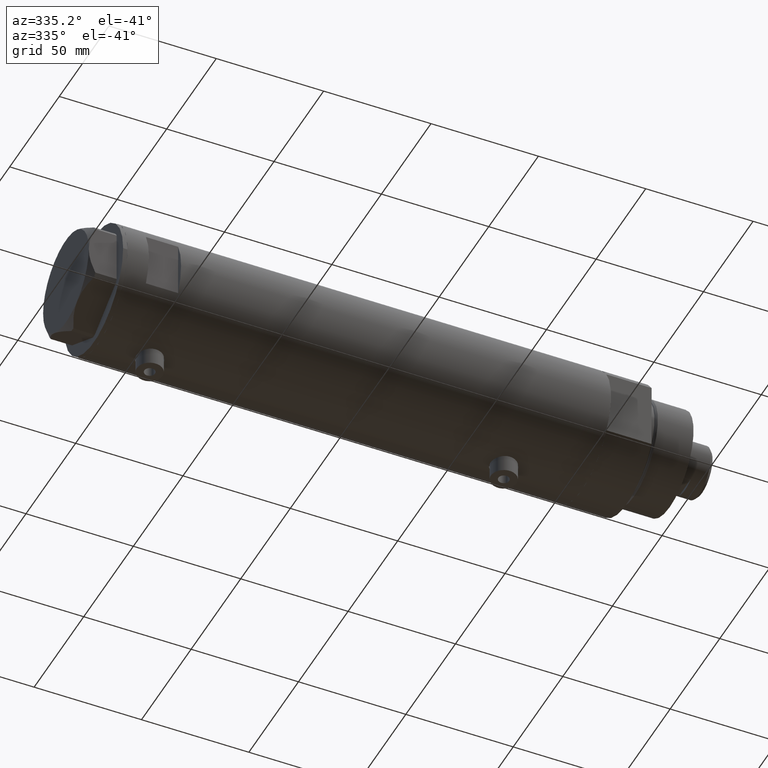
[diagram: clean part render]
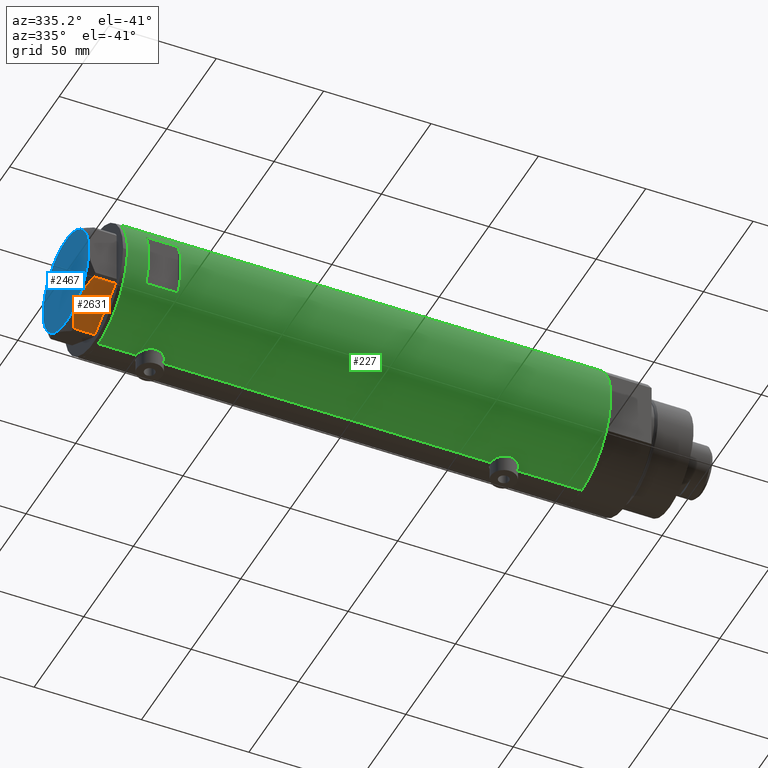
[diagram: same view with three faces highlighted in distinct colors, each labeled with its STEP entity id]
A machine part, auxiliary view with three faces highlighted in distinct colors.
Their STEP definitions:

[orange] entity #2631 — the highlighted planar face has unit normal (0, 0.5, 0.866).
#35 = B_SPLINE_CURVE_WITH_KNOTS ( 'NONE', 3,
 ( #3242, #4729, #2881, #2162, #3628, #94, #1948, #850, #4557, #1199 ),
 .UNSPECIFIED., .F., .F.,
 ( 4, 2, 2, 2, 4 ),
 ( 0.01376519981810312397, 0.01998941321701587850, 0.02154546656674406757, 0.02310151991647225664, 0.02621362661592864171 ),
 .UNSPECIFIED. ) ;
#57 = EDGE_CURVE ( 'NONE', #3367, #337, #2807, .T. ) ;
#94 = CARTESIAN_POINT ( 'NONE',  ( -18.64279229058393739, 15.79469123530780372, 11.57055225522972286 ) ) ;
#149 = PLANE ( 'NONE',  #1651 ) ;
#152 = VECTOR ( 'NONE', #3558, 1000.000000000000000 ) ;
#224 = VECTOR ( 'NONE', #4338, 1000.000000000000000 ) ;
#334 = ORIENTED_EDGE ( 'NONE', *, *, #4470, .T. ) ;
#337 = VERTEX_POINT ( 'NONE', #4058 ) ;
#411 = CARTESIAN_POINT ( 'NONE',  ( -4.320186229909891651, 24.06385169993495055, 11.62937486882611005 ) ) ;
#850 = CARTESIAN_POINT ( 'NONE',  ( -20.35958612119325650, 14.80349985506242838, 10.84420102443839085 ) ) ;
#892 = CARTESIAN_POINT ( 'NONE',  ( 0.000000000000000000, 26.55811238272274366, 13.00000000000000000 ) ) ;
#916 = DIRECTION ( 'NONE',  ( 0.5000000000000008882, -0.8660254037844381525, 0.000000000000000000 ) ) ;
#980 = CARTESIAN_POINT ( 'NONE',  ( -22.03005154776142049, 13.83905619136132614, 13.00000000000000000 ) ) ;
#1165 = DIRECTION ( 'NONE',  ( -0.8660254037844380415, -0.5000000000000008882, 0.000000000000000000 ) ) ;
#1199 = CARTESIAN_POINT ( 'NONE',  ( -22.03005154776142760, 13.83905619136132259, 9.983800287807632401 ) ) ;
#1208 = CARTESIAN_POINT ( 'NONE',  ( -9.656518383329851574, 20.98291889467267879, 12.90784227772844162 ) ) ;
#1312 = ORIENTED_EDGE ( 'NONE', *, *, #57, .T. ) ;
#1378 = CARTESIAN_POINT ( 'NONE',  ( -0.9699484522385893870, 25.99811238272273073, 0.000000000000000000 ) ) ;
#1421 = B_SPLINE_CURVE_WITH_KNOTS ( 'NONE', 3,
 ( #2673, #3050, #411, #2654, #4160, #1505, #1208, #1526, #4467, #2987 ),
 .UNSPECIFIED., .F., .F.,
 ( 4, 2, 2, 2, 4 ),
 ( 0.001228959670438532553, 0.007497079744270828371, 0.01063113978118697921, 0.01219816979964505159, 0.01376519981810312397 ),
 .UNSPECIFIED. ) ;
#1470 = EDGE_LOOP ( 'NONE', ( #3000, #1312, #3132, #2885, #334 ) ) ;
#1505 = CARTESIAN_POINT ( 'NONE',  ( -9.197898616902921987, 21.24770314027493612, 12.85271263895580596 ) ) ;
#1526 = CARTESIAN_POINT ( 'NONE',  ( -10.58093321976963175, 20.44920774001128194, 12.98168640760950510 ) ) ;
#1632 = EDGE_CURVE ( 'NONE', #2811, #3367, #4726, .T. ) ;
#1651 = AXIS2_PLACEMENT_3D ( 'NONE', #892, #916, #2339 ) ;
#1923 = VERTEX_POINT ( 'NONE', #2945 ) ;
#1948 = CARTESIAN_POINT ( 'NONE',  ( -19.07486218896993790, 15.54523556316591915, 11.39727285399141898 ) ) ;
#2087 = LINE ( 'NONE', #2453, #152 ) ;
#2162 = CARTESIAN_POINT ( 'NONE',  ( -17.32831362639716843, 16.55360584592005679, 12.04068176582934235 ) ) ;
#2339 = DIRECTION ( 'NONE',  ( 0.8660254037844381525, 0.5000000000000008882, 0.000000000000000000 ) ) ;
#2453 = CARTESIAN_POINT ( 'NONE',  ( -0.9699484522385897201, 25.99811238272273073, 13.00000000000000000 ) ) ;
#2631 = ADVANCED_FACE ( 'NONE', ( #3187 ), #149, .F. ) ;
#2654 = CARTESIAN_POINT ( 'NONE',  ( -6.946777556903628970, 22.54738849024396075, 12.42689993760377831 ) ) ;
#2673 = CARTESIAN_POINT ( 'NONE',  ( -0.9699484522384476115, 25.99811238272281599, 9.983800287807556018 ) ) ;
#2807 = LINE ( 'NONE', #980, #224 ) ;
#2811 = VERTEX_POINT ( 'NONE', #1378 ) ;
#2881 = CARTESIAN_POINT ( 'NONE',  ( -15.11535457301031649, 17.83125835109857249, 12.70765172847700519 ) ) ;
#2885 = ORIENTED_EDGE ( 'NONE', *, *, #4092, .F. ) ;
#2945 = CARTESIAN_POINT ( 'NONE',  ( -11.50000000000004441, 19.91858428704211548, 13.00000000000000000 ) ) ;
#2987 = CARTESIAN_POINT ( 'NONE',  ( -11.50000000000004441, 19.91858428704211548, 13.00000000000000000 ) ) ;
#2996 = CARTESIAN_POINT ( 'NONE',  ( -22.03005154776141339, 13.83905619136132792, 0.000000000000000000 ) ) ;
#3000 = ORIENTED_EDGE ( 'NONE', *, *, #1632, .T. ) ;
#3050 = CARTESIAN_POINT ( 'NONE',  ( -2.626494320835643048, 25.04170517956326236, 10.87778242614345814 ) ) ;
#3132 = ORIENTED_EDGE ( 'NONE', *, *, #3291, .F. ) ;
#3187 = FACE_OUTER_BOUND ( 'NONE', #1470, .T. ) ;
#3242 = CARTESIAN_POINT ( 'NONE',  ( -11.50000000000004441, 19.91858428704211548, 13.00000000000000000 ) ) ;
#3291 = EDGE_CURVE ( 'NONE', #1923, #337, #35, .T. ) ;
#3367 = VERTEX_POINT ( 'NONE', #2996 ) ;
#3381 = CARTESIAN_POINT ( 'NONE',  ( -0.9699484522384476115, 25.99811238272281599, 9.983800287807556018 ) ) ;
#3428 = VERTEX_POINT ( 'NONE', #3381 ) ;
#3558 = DIRECTION ( 'NONE',  ( 0.000000000000000000, 0.000000000000000000, -1.000000000000000000 ) ) ;
#3628 = CARTESIAN_POINT ( 'NONE',  ( -17.77001848220189828, 16.29858742851882525, 11.89212886775844424 ) ) ;
#4053 = CARTESIAN_POINT ( 'NONE',  ( 0.000000000000000000, 26.55811238272274366, 0.000000000000000000 ) ) ;
#4058 = CARTESIAN_POINT ( 'NONE',  ( -22.03005154776142760, 13.83905619136132259, 9.983800287807632401 ) ) ;
#4092 = EDGE_CURVE ( 'NONE', #3428, #1923, #1421, .T. ) ;
#4119 = VECTOR ( 'NONE', #1165, 1000.000000000000227 ) ;
#4160 = CARTESIAN_POINT ( 'NONE',  ( -7.836767740116584058, 22.03355241838984924, 12.63731396715694899 ) ) ;
#4338 = DIRECTION ( 'NONE',  ( 0.000000000000000000, 0.000000000000000000, 1.000000000000000000 ) ) ;
#4467 = CARTESIAN_POINT ( 'NONE',  ( -11.04134848610939557, 20.18338686205100885, 13.00000000000010125 ) ) ;
#4470 = EDGE_CURVE ( 'NONE', #3428, #2811, #2087, .T. ) ;
#4557 = CARTESIAN_POINT ( 'NONE',  ( -21.20080365460317751, 14.31782268570117367, 10.43131750950939818 ) ) ;
#4726 = LINE ( 'NONE', #4053, #4119 ) ;
#4729 = CARTESIAN_POINT ( 'NONE',  ( -13.32175508098984018, 18.86679350063497296, 13.00000000000009237 ) ) ;

[blue] entity #2467 — the highlighted planar face has unit normal (-1, -0, 0).
#27 = CIRCLE ( 'NONE', #394, 23.00000000000004619 ) ;
#206 = DIRECTION ( 'NONE',  ( 0.000000000000000000, 0.000000000000000000, 1.000000000000000000 ) ) ;
#229 = AXIS2_PLACEMENT_3D ( 'NONE', #561, #1296, #4200 ) ;
#358 = CARTESIAN_POINT ( 'NONE',  ( 0.000000000000000000, 0.000000000000000000, 13.00000000000000000 ) ) ;
#394 = AXIS2_PLACEMENT_3D ( 'NONE', #1550, #2658, #4212 ) ;
#454 = EDGE_CURVE ( 'NONE', #3607, #3280, #4728, .T. ) ;
#494 = EDGE_CURVE ( 'NONE', #811, #3607, #4343, .T. ) ;
#496 = PLANE ( 'NONE',  #1574 ) ;
#561 = CARTESIAN_POINT ( 'NONE',  ( 0.000000000000000000, 0.000000000000000000, 13.00000000000000000 ) ) ;
#580 = DIRECTION ( 'NONE',  ( 0.000000000000000000, 0.000000000000000000, 1.000000000000000000 ) ) ;
#811 = VERTEX_POINT ( 'NONE', #4428 ) ;
#822 = EDGE_CURVE ( 'NONE', #1512, #1923, #4032, .T. ) ;
#871 = EDGE_CURVE ( 'NONE', #2904, #811, #2704, .T. ) ;
#1060 = ORIENTED_EDGE ( 'NONE', *, *, #454, .T. ) ;
#1270 = DIRECTION ( 'NONE',  ( 1.000000000000000000, 0.000000000000000000, 0.000000000000000000 ) ) ;
#1296 = DIRECTION ( 'NONE',  ( 0.000000000000000000, 0.000000000000000000, 1.000000000000000000 ) ) ;
#1447 = CARTESIAN_POINT ( 'NONE',  ( 22.99999999999995026, 2.373657066004705010E-13, 13.00000000000000000 ) ) ;
#1512 = VERTEX_POINT ( 'NONE', #2583 ) ;
#1521 = FACE_OUTER_BOUND ( 'NONE', #3836, .T. ) ;
#1542 = DIRECTION ( 'NONE',  ( 0.000000000000000000, 0.000000000000000000, 1.000000000000000000 ) ) ;
#1543 = CARTESIAN_POINT ( 'NONE',  ( 0.000000000000000000, 0.000000000000000000, 13.00000000000000000 ) ) ;
#1550 = CARTESIAN_POINT ( 'NONE',  ( 0.000000000000000000, 0.000000000000000000, 13.00000000000000000 ) ) ;
#1568 = CARTESIAN_POINT ( 'NONE',  ( -23.00000000000004619, -8.112498833180673323E-14, 13.00000000000000000 ) ) ;
#1574 = AXIS2_PLACEMENT_3D ( 'NONE', #1543, #3759, #4137 ) ;
#1704 = CARTESIAN_POINT ( 'NONE',  ( 0.000000000000000000, 0.000000000000000000, 13.00000000000000000 ) ) ;
#1864 = CIRCLE ( 'NONE', #2183, 23.00000000000004619 ) ;
#1923 = VERTEX_POINT ( 'NONE', #2945 ) ;
#2183 = AXIS2_PLACEMENT_3D ( 'NONE', #2373, #580, #1270 ) ;
#2289 = EDGE_CURVE ( 'NONE', #1923, #2904, #27, .T. ) ;
#2373 = CARTESIAN_POINT ( 'NONE',  ( 0.000000000000000000, 0.000000000000000000, 13.00000000000000000 ) ) ;
#2467 = ADVANCED_FACE ( 'NONE', ( #1521 ), #496, .T. ) ;
#2583 = CARTESIAN_POINT ( 'NONE',  ( 11.49999999999990408, 19.91858428704219364, 13.00000000000000000 ) ) ;
#2635 = AXIS2_PLACEMENT_3D ( 'NONE', #3085, #4300, #3527 ) ;
#2658 = DIRECTION ( 'NONE',  ( 0.000000000000000000, 0.000000000000000000, 1.000000000000000000 ) ) ;
#2704 = CIRCLE ( 'NONE', #229, 23.00000000000004619 ) ;
#2904 = VERTEX_POINT ( 'NONE', #1568 ) ;
#2945 = CARTESIAN_POINT ( 'NONE',  ( -11.50000000000004441, 19.91858428704211548, 13.00000000000000000 ) ) ;
#3085 = CARTESIAN_POINT ( 'NONE',  ( 0.000000000000000000, 0.000000000000000000, 13.00000000000000000 ) ) ;
#3252 = AXIS2_PLACEMENT_3D ( 'NONE', #1704, #206, #4655 ) ;
#3280 = VERTEX_POINT ( 'NONE', #1447 ) ;
#3353 = DIRECTION ( 'NONE',  ( 1.000000000000000000, 0.000000000000000000, 0.000000000000000000 ) ) ;
#3527 = DIRECTION ( 'NONE',  ( 1.000000000000000000, 0.000000000000000000, 0.000000000000000000 ) ) ;
#3592 = ORIENTED_EDGE ( 'NONE', *, *, #494, .T. ) ;
#3607 = VERTEX_POINT ( 'NONE', #4446 ) ;
#3639 = AXIS2_PLACEMENT_3D ( 'NONE', #358, #1542, #3353 ) ;
#3659 = ORIENTED_EDGE ( 'NONE', *, *, #822, .T. ) ;
#3759 = DIRECTION ( 'NONE',  ( 0.000000000000000000, 0.000000000000000000, 1.000000000000000000 ) ) ;
#3836 = EDGE_LOOP ( 'NONE', ( #1060, #4782, #3659, #4093, #4100, #3592 ) ) ;
#4032 = CIRCLE ( 'NONE', #3639, 23.00000000000004619 ) ;
#4093 = ORIENTED_EDGE ( 'NONE', *, *, #2289, .T. ) ;
#4100 = ORIENTED_EDGE ( 'NONE', *, *, #871, .T. ) ;
#4137 = DIRECTION ( 'NONE',  ( 1.000000000000000000, 0.000000000000000000, -0.000000000000000000 ) ) ;
#4200 = DIRECTION ( 'NONE',  ( 1.000000000000000000, 0.000000000000000000, 0.000000000000000000 ) ) ;
#4212 = DIRECTION ( 'NONE',  ( 1.000000000000000000, 0.000000000000000000, 0.000000000000000000 ) ) ;
#4300 = DIRECTION ( 'NONE',  ( 0.000000000000000000, 0.000000000000000000, 1.000000000000000000 ) ) ;
#4343 = CIRCLE ( 'NONE', #3252, 23.00000000000004619 ) ;
#4428 = CARTESIAN_POINT ( 'NONE',  ( -11.49999999999990585, -19.91858428704219364, 13.00000000000000000 ) ) ;
#4446 = CARTESIAN_POINT ( 'NONE',  ( 11.50000000000018296, -19.91858428704203732, 13.00000000000000000 ) ) ;
#4655 = DIRECTION ( 'NONE',  ( 1.000000000000000000, 0.000000000000000000, 0.000000000000000000 ) ) ;
#4687 = EDGE_CURVE ( 'NONE', #3280, #1512, #1864, .T. ) ;
#4728 = CIRCLE ( 'NONE', #2635, 23.00000000000004619 ) ;
#4782 = ORIENTED_EDGE ( 'NONE', *, *, #4687, .T. ) ;

[green] entity #227 — the highlighted cylindrical surface (partial cylindrical patch) has radius 29.5 mm, axis along (-1, -0, 0).
#7 = ORIENTED_EDGE ( 'NONE', *, *, #3791, .T. ) ;
#24 = CARTESIAN_POINT ( 'NONE',  ( 28.53064705443909688, -7.500145243772297299, -73.89244703291120686 ) ) ;
#33 = AXIS2_PLACEMENT_3D ( 'NONE', #1052, #4015, #1070 ) ;
#43 = CARTESIAN_POINT ( 'NONE',  ( -29.49152014567325253, -0.8152473631539810528, 82.38964705166667102 ) ) ;
#62 = CARTESIAN_POINT ( 'NONE',  ( -29.38738983525000847, -2.582042051636495472, -81.99535171595380234 ) ) ;
#67 = CARTESIAN_POINT ( 'NONE',  ( 29.17410189149617139, -4.377709617224038396, -79.49475827476024392 ) ) ;
#74 = CARTESIAN_POINT ( 'NONE',  ( -28.91427970886711307, -5.849862889315915915, -78.50993133128852719 ) ) ;
#106 = DIRECTION ( 'NONE',  ( 1.000000000000000000, 0.000000000000000000, 0.000000000000000000 ) ) ;
#145 = CARTESIAN_POINT ( 'NONE',  ( -29.08006251441183210, -4.961575945539722809, -72.49381497947474884 ) ) ;
#172 = CARTESIAN_POINT ( 'NONE',  ( 28.98816846638396427, -5.474212100855884167, 97.23252159883307399 ) ) ;
#175 = CARTESIAN_POINT ( 'NONE',  ( -29.14490888978862415, -4.565669626908224643, -72.02701820123783705 ) ) ;
#189 = CARTESIAN_POINT ( 'NONE',  ( -29.12311479234995915, -4.702282052053731398, 92.72223528886483734 ) ) ;
#204 = EDGE_CURVE ( 'NONE', #1657, #2915, #3720, .T. ) ;
#211 = CARTESIAN_POINT ( 'NONE',  ( -29.33479068874800078, -3.136645782783863190, 94.02155254614469015 ) ) ;
#212 = B_SPLINE_CURVE_WITH_KNOTS ( 'NONE', 3,
 ( #3702, #1753, #4412, #2556, #649, #3596, #4440, #1120, #3262, #4752, #676, #3218, #1382, #4719, #700, #2490, #4390, #4043, #2210, #3307, #3623, #1441, #2179, #24, #363, #1883, #4487, #1210, #1595, #1159, #1188, #4163, #846, #2311, #4113, #779, #67, #831, #1508, #3783, #806, #3421, #2657, #2692 ),
 .UNSPECIFIED., .F., .F.,
 ( 4, 2, 2, 2, 2, 2, 2, 2, 2, 2, 2, 2, 2, 2, 2, 2, 2, 2, 2, 2, 2, 4 ),
 ( 0.02354540741801909587, 0.02501659793198026879, 0.02648778844594144172, 0.02722338370292202298, 0.02795897895990260076, 0.02943016947386375981, 0.03016576473084434107, 0.03090135998782492233, 0.03237255050178604321, 0.03384374101574717103, 0.03457933627272773841, 0.03531493152970829885, 0.03678612204366942667, 0.03825731255763055449, 0.03972850307159167538, 0.04046409832857222888, 0.04119969358555276850, 0.04193528884253332201, 0.04267088409951386857, 0.04414207461347498251, 0.04561326512743610340, 0.04708445564139722428 ),
 .UNSPECIFIED. ) ;
#216 = CARTESIAN_POINT ( 'NONE',  ( 29.40305664607912917, -2.432276947006154710, 84.98852198993412799 ) ) ;
#227 = ADVANCED_FACE ( 'NONE', ( #1247, #3418 ), #1985, .T. ) ;
#245 = CARTESIAN_POINT ( 'NONE',  ( 29.31438578683259877, -3.335040812377236819, 85.36452723156226341 ) ) ;
#269 = CARTESIAN_POINT ( 'NONE',  ( 28.77424839213763264, -6.509286280845844708, 88.34218748394039267 ) ) ;
#272 = DIRECTION ( 'NONE',  ( -0.000000000000000000, -4.625929269271487689E-15, 1.000000000000000000 ) ) ;
#289 = CARTESIAN_POINT ( 'NONE',  ( 28.86327882047615390, -6.097569254709699571, 96.47367090911450305 ) ) ;
#312 = ORIENTED_EDGE ( 'NONE', *, *, #204, .T. ) ;
#327 = EDGE_CURVE ( 'NONE', #2915, #3616, #3589, .T. ) ;
#331 = ORIENTED_EDGE ( 'NONE', *, *, #3375, .T. ) ;
#363 = CARTESIAN_POINT ( 'NONE',  ( 28.54347630091233512, -7.451827970232800524, -74.38056781783957661 ) ) ;
#423 = LINE ( 'NONE', #3692, #2867 ) ;
#442 = CARTESIAN_POINT ( 'NONE',  ( -29.50000000000000355, 3.612708057484692393E-15, -112.5999999999999943 ) ) ;
#471 = CARTESIAN_POINT ( 'NONE',  ( -29.41741605749267308, -2.213861184585004249, 94.44831174451371680 ) ) ;
#479 = CARTESIAN_POINT ( 'NONE',  ( 29.23250901027694937, -3.968959760999270614, 98.46846017287658981 ) ) ;
#497 = CARTESIAN_POINT ( 'NONE',  ( -28.85437274499025406, -6.138402965889066643, 87.37243403294917243 ) ) ;
#503 = CARTESIAN_POINT ( 'NONE',  ( 29.33743940633121028, -3.100990836771693626, 98.93327512439067561 ) ) ;
#506 = CARTESIAN_POINT ( 'NONE',  ( -29.41741605749266242, -2.213861184585003361, -70.45168825548628888 ) ) ;
#518 = VERTEX_POINT ( 'NONE', #4685 ) ;
#524 = CARTESIAN_POINT ( 'NONE',  ( -28.96072448608914129, -5.617106371651694019, 91.37082731660437673 ) ) ;
#531 = VERTEX_POINT ( 'NONE', #1481 ) ;
#562 = CARTESIAN_POINT ( 'NONE',  ( -29.14490888978864191, -4.565669626908226419, 92.87298179876214022 ) ) ;
#567 = CARTESIAN_POINT ( 'NONE',  ( 0.000000000000000000, 0.000000000000000000, -112.5999999999999943 ) ) ;
#582 = CARTESIAN_POINT ( 'NONE',  ( -28.83028160285196151, -6.250189016175732526, 89.00967003214680062 ) ) ;
#586 = VERTEX_POINT ( 'NONE', #1094 ) ;
#590 = CARTESIAN_POINT ( 'NONE',  ( -29.43130053621385400, -2.021711243143688996, -70.38244954039815582 ) ) ;
#611 = CARTESIAN_POINT ( 'NONE',  ( 28.86290657878786092, -6.099358034152096764, 87.72869329957394768 ) ) ;
#649 = CARTESIAN_POINT ( 'NONE',  ( 29.40378957563274653, -2.423455993307769507, -66.28550539884011528 ) ) ;
#663 = CARTESIAN_POINT ( 'NONE',  ( -28.99856997507319534, -5.420860550814434298, -79.43723012145800055 ) ) ;
#668 = CARTESIAN_POINT ( 'NONE',  ( 28.95592074821772854, -5.641779806288306887, 87.15226504197971735 ) ) ;
#676 = CARTESIAN_POINT ( 'NONE',  ( 29.08294968506024247, -4.955368226349214034, -67.74903281801535115 ) ) ;
#680 = VERTEX_POINT ( 'NONE', #920 ) ;
#683 = CARTESIAN_POINT ( 'NONE',  ( -28.89999183068148980, -5.919812056825921154, -78.31500238835414507 ) ) ;
#692 = CARTESIAN_POINT ( 'NONE',  ( 29.50000000000000711, -0.4976091310423271241, 84.59999999999998010 ) ) ;
#700 = CARTESIAN_POINT ( 'NONE',  ( 28.86327882047615390, -6.097569254709699571, -69.02632909088549695 ) ) ;
#724 = CARTESIAN_POINT ( 'NONE',  ( 28.55627543367307553, -7.402134446380880917, 93.33219650318237370 ) ) ;
#757 = CARTESIAN_POINT ( 'NONE',  ( -28.83909499632370554, -6.209928350489658300, -75.48382218917038244 ) ) ;
#758 = EDGE_CURVE ( 'NONE', #778, #518, #4037, .T. ) ;
#778 = VERTEX_POINT ( 'NONE', #3324 ) ;
#779 = CARTESIAN_POINT ( 'NONE',  ( 29.14351131874356682, -4.576283785862482745, -79.34705324848521002 ) ) ;
#780 = CARTESIAN_POINT ( 'NONE',  ( -29.05872136210574652, -5.084685578900219660, -72.65990008091239361 ) ) ;
#784 = VERTEX_POINT ( 'NONE', #1500 ) ;
#806 = CARTESIAN_POINT ( 'NONE',  ( 29.43916859571211830, -1.954329820671505402, -80.65764479242091056 ) ) ;
#831 = CARTESIAN_POINT ( 'NONE',  ( 29.26166309680877475, -3.765013078516723066, -79.90510232053061657 ) ) ;
#846 = CARTESIAN_POINT ( 'NONE',  ( 28.98740664105171660, -5.478212189394670695, -78.52819516185789439 ) ) ;
#872 = CARTESIAN_POINT ( 'NONE',  ( 0.000000000000000000, 0.000000000000000000, 112.5999999999999943 ) ) ;
#911 = CARTESIAN_POINT ( 'NONE',  ( 29.40378957563274653, -2.423455993307769507, 99.21449460115987051 ) ) ;
#914 = CARTESIAN_POINT ( 'NONE',  ( -29.37136442049237672, -2.777615426151009537, -70.68634887377885434 ) ) ;
#920 = CARTESIAN_POINT ( 'NONE',  ( 29.50000000000000355, -8.867907290838723877E-21, -65.89999999999999147 ) ) ;
#932 = CARTESIAN_POINT ( 'NONE',  ( 0.000000000000000000, 0.000000000000000000, -112.5999999999999943 ) ) ;
#970 = CARTESIAN_POINT ( 'NONE',  ( -29.25427426731711833, -3.815048240656432110, -81.26740768153332795 ) ) ;
#978 = ORIENTED_EDGE ( 'NONE', *, *, #2428, .F. ) ;
#1007 = EDGE_LOOP ( 'NONE', ( #1540, #312, #2949, #1365, #7, #4765, #331, #4254, #4232, #3238, #1531, #978 ) ) ;
#1036 = AXIS2_PLACEMENT_3D ( 'NONE', #872, #1227, #4182 ) ;
#1052 = CARTESIAN_POINT ( 'NONE',  ( 0.000000000000000000, 0.000000000000000000, 102.6000000000000085 ) ) ;
#1062 = LINE ( 'NONE', #3567, #3660 ) ;
#1070 = DIRECTION ( 'NONE',  ( 1.000000000000000000, 0.000000000000000000, 0.000000000000000000 ) ) ;
#1075 = EDGE_CURVE ( 'NONE', #586, #1078, #423, .T. ) ;
#1078 = VERTEX_POINT ( 'NONE', #2284 ) ;
#1089 = CARTESIAN_POINT ( 'NONE',  ( 0.000000000000000000, 0.000000000000000000, 87.60000000000010800 ) ) ;
#1094 = CARTESIAN_POINT ( 'NONE',  ( 12.96148139681573319, -26.49999999999998934, 87.59999999999998010 ) ) ;
#1120 = CARTESIAN_POINT ( 'NONE',  ( 29.26065241255351523, -3.756597382275449704, -66.90395565180806159 ) ) ;
#1133 = CARTESIAN_POINT ( 'NONE',  ( -29.50000000000000355, -5.649958391113855330E-16, 94.84999999999999432 ) ) ;
#1159 = CARTESIAN_POINT ( 'NONE',  ( 28.86290657878786092, -6.099358034152096764, -77.77130670042608074 ) ) ;
#1163 = EDGE_CURVE ( 'NONE', #680, #3616, #212, .T. ) ;
#1188 = CARTESIAN_POINT ( 'NONE',  ( 28.89374847711160754, -5.952001739005070569, -77.96983981079635839 ) ) ;
#1210 = CARTESIAN_POINT ( 'NONE',  ( 28.72051071455670979, -6.739402597165495834, -76.72718973703751999 ) ) ;
#1227 = DIRECTION ( 'NONE',  ( 0.000000000000000000, 0.000000000000000000, 1.000000000000000000 ) ) ;
#1247 = FACE_OUTER_BOUND ( 'NONE', #1007, .T. ) ;
#1250 = CARTESIAN_POINT ( 'NONE',  ( 29.50000000000000355, -8.867907290838723877E-21, 99.59999999999999432 ) ) ;
#1260 = CARTESIAN_POINT ( 'NONE',  ( -28.85437239305167267, -6.138402996999204220, -77.52756598756700157 ) ) ;
#1263 = LINE ( 'NONE', #4094, #4676 ) ;
#1281 = CARTESIAN_POINT ( 'NONE',  ( -29.45566469296797862, -1.628675872921093282, -70.26243967371320309 ) ) ;
#1297 = CARTESIAN_POINT ( 'NONE',  ( -28.96147498926092112, -5.613273026676368183, 85.82107301657418930 ) ) ;
#1320 = CARTESIAN_POINT ( 'NONE',  ( -29.25427426731712188, -3.815048240656433887, 83.63259231846663511 ) ) ;
#1343 = EDGE_CURVE ( 'NONE', #1454, #4493, #4096, .T. ) ;
#1352 = CARTESIAN_POINT ( 'NONE',  ( 28.53070445389873200, -7.499926890973435789, 92.34953420512916011 ) ) ;
#1365 = ORIENTED_EDGE ( 'NONE', *, *, #1163, .F. ) ;
#1373 = CARTESIAN_POINT ( 'NONE',  ( 28.72051071455670979, -6.739402597165495834, 88.77281026296242317 ) ) ;
#1377 = CARTESIAN_POINT ( 'NONE',  ( -29.50000000000000355, -0.4084468586314297656, -82.54999999999998295 ) ) ;
#1382 = CARTESIAN_POINT ( 'NONE',  ( 28.95619957017310853, -5.640369376407885937, -68.45060273509822935 ) ) ;
#1390 = CARTESIAN_POINT ( 'NONE',  ( -12.96148139681573319, -26.49999999999998934, 87.59999999999998010 ) ) ;
#1398 = CARTESIAN_POINT ( 'NONE',  ( 29.08168479815708096, -4.954011967599733168, 86.46372631484732096 ) ) ;
#1406 = CARTESIAN_POINT ( 'NONE',  ( -28.83034328164763238, -6.249904501012244040, -76.50914539564060135 ) ) ;
#1441 = CARTESIAN_POINT ( 'NONE',  ( 28.53399451186754732, -7.487442594623194836, -72.90102514498885000 ) ) ;
#1454 = VERTEX_POINT ( 'NONE', #3349 ) ;
#1481 = CARTESIAN_POINT ( 'NONE',  ( -29.50000000000000355, 3.612706708236066082E-15, -82.54999999999999716 ) ) ;
#1500 = CARTESIAN_POINT ( 'NONE',  ( 29.50000000000000355, 0.000000000000000000, 112.5999999999999943 ) ) ;
#1501 = EDGE_CURVE ( 'NONE', #1657, #531, #2394, .T. ) ;
#1504 = CARTESIAN_POINT ( 'NONE',  ( -29.50000000000000355, 3.612708057484692393E-15, 112.5999999999999943 ) ) ;
#1508 = CARTESIAN_POINT ( 'NONE',  ( 29.31438578683259877, -3.335040812377236819, -80.13547276843772238 ) ) ;
#1531 = ORIENTED_EDGE ( 'NONE', *, *, #2753, .F. ) ;
#1540 = ORIENTED_EDGE ( 'NONE', *, *, #1501, .F. ) ;
#1594 = CARTESIAN_POINT ( 'NONE',  ( 29.50000000000000355, -0.4905639552620948418, 99.59999999999998010 ) ) ;
#1595 = CARTESIAN_POINT ( 'NONE',  ( 28.77424839213763264, -6.509286280845844708, -77.15781251605957891 ) ) ;
#1604 = DIRECTION ( 'NONE',  ( 0.000000000000000000, 0.000000000000000000, 1.000000000000000000 ) ) ;
#1657 = VERTEX_POINT ( 'NONE', #3362 ) ;
#1685 = CARTESIAN_POINT ( 'NONE',  ( -29.21016169868140366, -4.135295259288786163, 93.30390088086510048 ) ) ;
#1711 = CARTESIAN_POINT ( 'NONE',  ( -29.37136442049237672, -2.777615426151010869, 94.21365112622116555 ) ) ;
#1753 = CARTESIAN_POINT ( 'NONE',  ( 29.50000000000000355, -0.4905639552620948418, -65.89999999999997726 ) ) ;
#1785 = CARTESIAN_POINT ( 'NONE',  ( 29.48742104091791205, -0.9879539515379935910, 84.64904301646018325 ) ) ;
#1825 = CARTESIAN_POINT ( 'NONE',  ( -28.87532468301957778, -6.038983942005357264, -77.92329367688532216 ) ) ;
#1845 = ORIENTED_EDGE ( 'NONE', *, *, #3543, .F. ) ;
#1870 = VECTOR ( 'NONE', #3455, 1000.000000000000000 ) ;
#1883 = CARTESIAN_POINT ( 'NONE',  ( 28.59279484545186989, -7.260293545345781752, -75.34406557984470965 ) ) ;
#1930 = VECTOR ( 'NONE', #3727, 1000.000000000000000 ) ;
#1943 = CIRCLE ( 'NONE', #2340, 29.50000000000000355 ) ;
#1955 = CARTESIAN_POINT ( 'NONE',  ( -29.43130053621386111, -2.021711243143688108, 94.51755045960182144 ) ) ;
#1980 = DIRECTION ( 'NONE',  ( -0.000000000000000000, -0.000000000000000000, -1.000000000000000000 ) ) ;
#1985 = CYLINDRICAL_SURFACE ( 'NONE', #2092, 29.50000000000000355 ) ;
#1995 = CARTESIAN_POINT ( 'NONE',  ( -29.33428005013169226, -3.127775714777722094, -81.71493203872593369 ) ) ;
#2008 = CARTESIAN_POINT ( 'NONE',  ( -28.84137202824162571, -6.198846007008988579, 87.77611738876127845 ) ) ;
#2012 = CARTESIAN_POINT ( 'NONE',  ( -29.12379578281188586, -4.705261494361424823, -80.43387957720274528 ) ) ;
#2060 = CARTESIAN_POINT ( 'NONE',  ( -29.05872136210575007, -5.084685578900221437, 92.24009991908758366 ) ) ;
#2092 = AXIS2_PLACEMENT_3D ( 'NONE', #932, #2713, #106 ) ;
#2093 = CARTESIAN_POINT ( 'NONE',  ( 28.54678862679668327, -7.438514536388042053, 93.08958274320788462 ) ) ;
#2127 = CARTESIAN_POINT ( 'NONE',  ( 28.62983003203745369, -7.114781472982449451, 89.67726941146260344 ) ) ;
#2132 = VERTEX_POINT ( 'NONE', #3374 ) ;
#2160 = CARTESIAN_POINT ( 'NONE',  ( -29.37055817176825201, -2.766456155496576308, -81.90813607588911793 ) ) ;
#2179 = CARTESIAN_POINT ( 'NONE',  ( 28.53070445389873200, -7.499926890973435789, -73.15046579487081146 ) ) ;
#2200 = CARTESIAN_POINT ( 'NONE',  ( 28.98740664105171660, -5.478212189394670695, 86.97180483814203455 ) ) ;
#2206 = DIRECTION ( 'NONE',  ( 0.000000000000000000, 0.000000000000000000, 1.000000000000000000 ) ) ;
#2210 = CARTESIAN_POINT ( 'NONE',  ( 28.59337635119608123, -7.258007499531553108, -71.44783774348638872 ) ) ;
#2220 = LINE ( 'NONE', #3695, #3089 ) ;
#2242 = CARTESIAN_POINT ( 'NONE',  ( 29.50000000000000355, 0.000000000000000000, -112.5999999999999943 ) ) ;
#2248 = CARTESIAN_POINT ( 'NONE',  ( 29.50000000000000355, 0.000000000000000000, -112.5999999999999943 ) ) ;
#2267 = CARTESIAN_POINT ( 'NONE',  ( -29.38738983524999782, -2.582042051636495028, 82.90464828404617492 ) ) ;
#2284 = CARTESIAN_POINT ( 'NONE',  ( 12.96148139681573319, -26.49999999999998934, 102.6000000000000085 ) ) ;
#2295 = B_SPLINE_CURVE_WITH_KNOTS ( 'NONE', 3,
 ( #3674, #1377, #2842, #4330, #2482, #62, #2160, #1995, #3446, #970, #3096, #2012, #4710, #663, #4542, #74, #683, #1825, #1260, #3139, #4014, #1406, #2557, #757, #4142, #3784, #2990, #3445, #780, #145, #4643, #175, #2768, #4257, #3914, #914, #506, #590, #1281, #2411, #2459, #2793, #4292 ),
 .UNSPECIFIED., .F., .F.,
 ( 4, 2, 2, 2, 2, 2, 2, 2, 2, 1, 2, 2, 2, 2, 2, 2, 2, 2, 2, 2, 2, 4 ),
 ( 0.01959598605283711936, 0.02082041500883365093, 0.02204484396483018596, 0.02265705844282846215, 0.02326927292082673487, 0.02449370187682328379, 0.02571813083281983270, 0.02694255978881637814, 0.02755477426681465433, 0.02816698874481293052, 0.02877920322281120324, 0.02939141770080947597, 0.03061584665680598324, 0.03184027561280249052, 0.03306470456879899433, 0.03367691904679725318, 0.03428913352479550508, 0.03551356248079204359, 0.03673799143678857515, 0.03735020591478684093, 0.03796242039278511365, 0.03918684934878163828 ),
 .UNSPECIFIED. ) ;
#2311 = CARTESIAN_POINT ( 'NONE',  ( 29.05028789344173035, -5.134328181356801579, -78.87246457606271122 ) ) ;
#2312 = LINE ( 'NONE', #2248, #1930 ) ;
#2340 = AXIS2_PLACEMENT_3D ( 'NONE', #1089, #272, #3285 ) ;
#2353 = CARTESIAN_POINT ( 'NONE',  ( -28.89999183068148270, -5.919812056825920266, 86.58499761164584640 ) ) ;
#2369 = EDGE_CURVE ( 'NONE', #4742, #3082, #3433, .T. ) ;
#2371 = ORIENTED_EDGE ( 'NONE', *, *, #1075, .F. ) ;
#2394 = LINE ( 'NONE', #442, #1870 ) ;
#2399 = CARTESIAN_POINT ( 'NONE',  ( -29.33428005013168871, -3.127775714777721650, 83.18506796127404357 ) ) ;
#2411 = CARTESIAN_POINT ( 'NONE',  ( -29.46613381094001483, -1.427468570127966796, -70.21172459459599224 ) ) ;
#2428 = EDGE_CURVE ( 'NONE', #531, #2132, #2295, .T. ) ;
#2459 = CARTESIAN_POINT ( 'NONE',  ( -29.49128673965872238, -0.8227026017531454682, -70.09075558927904126 ) ) ;
#2482 = CARTESIAN_POINT ( 'NONE',  ( -29.43333839972900989, -2.017691896334575130, -82.22935989047843464 ) ) ;
#2490 = CARTESIAN_POINT ( 'NONE',  ( 28.77541267587656648, -6.504036106227646385, -69.63371449864085605 ) ) ;
#2556 = CARTESIAN_POINT ( 'NONE',  ( 29.43922820968271736, -1.954457150219037542, -66.14210652754223929 ) ) ;
#2557 = CARTESIAN_POINT ( 'NONE',  ( -28.83028160285195796, -6.250189016175732526, -75.89032996785319085 ) ) ;
#2571 = CARTESIAN_POINT ( 'NONE',  ( 29.50000000000000355, 0.000000000000000000, -112.5999999999999943 ) ) ;
#2580 = CARTESIAN_POINT ( 'NONE',  ( -29.50000000000000355, 3.612706708236066082E-15, 82.34999999999998010 ) ) ;
#2625 = EDGE_CURVE ( 'NONE', #2970, #784, #3098, .T. ) ;
#2648 = DIRECTION ( 'NONE',  ( 0.000000000000000000, 0.000000000000000000, 1.000000000000000000 ) ) ;
#2657 = CARTESIAN_POINT ( 'NONE',  ( 29.50000000000000711, -0.4976091310423271241, -80.90000000000000568 ) ) ;
#2688 = CARTESIAN_POINT ( 'NONE',  ( -28.83260549167351527, -6.239494599049529633, 88.18384915698199222 ) ) ;
#2692 = CARTESIAN_POINT ( 'NONE',  ( 29.50000000000000355, -2.245054425791785664E-15, -80.90000000000000568 ) ) ;
#2700 = VECTOR ( 'NONE', #3910, 1000.000000000000000 ) ;
#2713 = DIRECTION ( 'NONE',  ( 0.000000000000000000, 0.000000000000000000, 1.000000000000000000 ) ) ;
#2716 = CARTESIAN_POINT ( 'NONE',  ( 29.08294968506024247, -4.955368226349214034, 97.75096718198466306 ) ) ;
#2740 = CARTESIAN_POINT ( 'NONE',  ( 29.43922820968271736, -1.954457150219037542, 99.35789347245777492 ) ) ;
#2753 = EDGE_CURVE ( 'NONE', #2132, #1454, #1062, .T. ) ;
#2760 = CARTESIAN_POINT ( 'NONE',  ( -28.99772237063717739, -5.425436006677727185, 91.72962674552640294 ) ) ;
#2768 = CARTESIAN_POINT ( 'NONE',  ( -29.21016169868140011, -4.135295259288784386, -71.59609911913487679 ) ) ;
#2778 = EDGE_CURVE ( 'NONE', #3082, #586, #1943, .T. ) ;
#2793 = CARTESIAN_POINT ( 'NONE',  ( -29.50000000000000711, -0.4141077724969877694, -70.04999999999998295 ) ) ;
#2842 = CARTESIAN_POINT ( 'NONE',  ( -29.49152014567324898, -0.8152473631539807197, -82.51035294833327782 ) ) ;
#2867 = VECTOR ( 'NONE', #2956, 1000.000000000000000 ) ;
#2875 = CARTESIAN_POINT ( 'NONE',  ( 29.50000000000000355, -2.245054425791785664E-15, -80.90000000000000568 ) ) ;
#2888 = CARTESIAN_POINT ( 'NONE',  ( 28.95619957017310853, -5.640369376407885937, 97.04939726490175644 ) ) ;
#2907 = ORIENTED_EDGE ( 'NONE', *, *, #2369, .F. ) ;
#2915 = VERTEX_POINT ( 'NONE', #2242 ) ;
#2949 = ORIENTED_EDGE ( 'NONE', *, *, #327, .T. ) ;
#2955 = VECTOR ( 'NONE', #1980, 1000.000000000000000 ) ;
#2956 = DIRECTION ( 'NONE',  ( 0.000000000000000000, 0.000000000000000000, 1.000000000000000000 ) ) ;
#2970 = VERTEX_POINT ( 'NONE', #1504 ) ;
#2990 = CARTESIAN_POINT ( 'NONE',  ( -28.96072448608914840, -5.617106371651695795, -73.52917268339560053 ) ) ;
#3003 = CARTESIAN_POINT ( 'NONE',  ( -29.37055817176825201, -2.766456155496577196, 82.99186392411087354 ) ) ;
#3029 = CARTESIAN_POINT ( 'NONE',  ( -29.50000000000000711, -0.4084468586314294880, 82.34999999999996589 ) ) ;
#3082 = VERTEX_POINT ( 'NONE', #1390 ) ;
#3089 = VECTOR ( 'NONE', #2648, 1000.000000000000000 ) ;
#3096 = CARTESIAN_POINT ( 'NONE',  ( -29.21108587560689784, -4.128853169727745076, -81.00967276909587156 ) ) ;
#3098 = CIRCLE ( 'NONE', #1036, 29.50000000000000355 ) ;
#3102 = DIRECTION ( 'NONE',  ( 1.000000000000000000, 0.000000000000000000, 0.000000000000000000 ) ) ;
#3124 = CARTESIAN_POINT ( 'NONE',  ( -29.21108587560690495, -4.128853169727745964, 83.89032723090410570 ) ) ;
#3139 = CARTESIAN_POINT ( 'NONE',  ( -28.84137202824162571, -6.198846007008989467, -77.12388261123872724 ) ) ;
#3151 = CARTESIAN_POINT ( 'NONE',  ( -29.25361239466580798, -3.820294933898100709, 93.56357989714042844 ) ) ;
#3171 = CARTESIAN_POINT ( 'NONE',  ( -29.50000000000000000, -0.4141077724969869922, 94.84999999999998010 ) ) ;
#3209 = CARTESIAN_POINT ( 'NONE',  ( 29.43916859571211830, -1.954329820671505402, 84.84235520757910365 ) ) ;
#3218 = CARTESIAN_POINT ( 'NONE',  ( 28.98816846638396427, -5.474212100855884167, -68.26747840116694022 ) ) ;
#3222 = CARTESIAN_POINT ( 'NONE',  ( -29.49128673965872238, -0.8227026017531463564, 94.80924441072093600 ) ) ;
#3228 = CARTESIAN_POINT ( 'NONE',  ( 29.05028789344173035, -5.134328181356801579, 86.62753542393733142 ) ) ;
#3238 = ORIENTED_EDGE ( 'NONE', *, *, #1343, .F. ) ;
#3246 = CARTESIAN_POINT ( 'NONE',  ( -29.50000000000000355, -5.649958391113855330E-16, 94.84999999999999432 ) ) ;
#3253 = CARTESIAN_POINT ( 'NONE',  ( 28.89374408016310269, -5.952042782108800445, 96.66984537025966517 ) ) ;
#3262 = CARTESIAN_POINT ( 'NONE',  ( 29.23250901027694937, -3.968959760999270614, -67.03153982712335335 ) ) ;
#3285 = DIRECTION ( 'NONE',  ( 1.776356839400250267E-15, 1.000000000000000000, 4.704334850106595203E-15 ) ) ;
#3307 = CARTESIAN_POINT ( 'NONE',  ( 28.55627543367307553, -7.402134446380880917, -72.16780349681759787 ) ) ;
#3324 = CARTESIAN_POINT ( 'NONE',  ( 29.50000000000000355, -8.867907290838723877E-21, 99.59999999999999432 ) ) ;
#3349 = CARTESIAN_POINT ( 'NONE',  ( -29.50000000000000355, 3.612706708236066082E-15, 82.34999999999998010 ) ) ;
#3362 = CARTESIAN_POINT ( 'NONE',  ( -29.50000000000000355, 3.612708057484692393E-15, -112.5999999999999943 ) ) ;
#3374 = CARTESIAN_POINT ( 'NONE',  ( -29.50000000000000355, -5.649958391113855330E-16, -70.04999999999998295 ) ) ;
#3375 = EDGE_CURVE ( 'NONE', #778, #784, #1263, .T. ) ;
#3418 = FACE_BOUND ( 'NONE', #4393, .T. ) ;
#3421 = CARTESIAN_POINT ( 'NONE',  ( 29.48742104091791205, -0.9879539515379935910, -80.85095698353977411 ) ) ;
#3433 = LINE ( 'NONE', #3826, #2955 ) ;
#3438 = CARTESIAN_POINT ( 'NONE',  ( -29.45566469296797507, -1.628675872921092616, 94.63756032628673154 ) ) ;
#3445 = CARTESIAN_POINT ( 'NONE',  ( -28.99772237063718094, -5.425436006677728074, -73.17037325447360274 ) ) ;
#3446 = CARTESIAN_POINT ( 'NONE',  ( -29.31475612970062983, -3.305202271067055442, -81.60847868843855224 ) ) ;
#3455 = DIRECTION ( 'NONE',  ( 0.000000000000000000, 0.000000000000000000, 1.000000000000000000 ) ) ;
#3513 = CARTESIAN_POINT ( 'NONE',  ( -29.12379578281188230, -4.705261494361423935, 84.46612042279721777 ) ) ;
#3530 = CARTESIAN_POINT ( 'NONE',  ( -29.08006251441182854, -4.961575945539721921, 92.40618502052522842 ) ) ;
#3543 = EDGE_CURVE ( 'NONE', #1078, #4742, #4755, .T. ) ;
#3562 = CARTESIAN_POINT ( 'NONE',  ( 29.26166309680877475, -3.765013078516723066, 85.59489767946935501 ) ) ;
#3567 = CARTESIAN_POINT ( 'NONE',  ( -29.50000000000000355, 3.612708057484692393E-15, -112.5999999999999943 ) ) ;
#3589 = LINE ( 'NONE', #2571, #2700 ) ;
#3591 = CARTESIAN_POINT ( 'NONE',  ( 28.89374847711160754, -5.952001739005070569, 87.53016018920367003 ) ) ;
#3596 = CARTESIAN_POINT ( 'NONE',  ( 29.33743940633121028, -3.100990836771693626, -66.56672487560932439 ) ) ;
#3610 = CARTESIAN_POINT ( 'NONE',  ( -29.46613381094001127, -1.427468570127966574, 94.68827540540394239 ) ) ;
#3614 = CARTESIAN_POINT ( 'NONE',  ( 29.17410189149617139, -4.377709617224038396, 86.00524172523978450 ) ) ;
#3616 = VERTEX_POINT ( 'NONE', #2875 ) ;
#3623 = CARTESIAN_POINT ( 'NONE',  ( 28.54678862679668327, -7.438514536388042053, -72.41041725679210117 ) ) ;
#3640 = CARTESIAN_POINT ( 'NONE',  ( 29.14351131874356682, -4.576283785862482745, 86.15294675151481840 ) ) ;
#3660 = VECTOR ( 'NONE', #2206, 1000.000000000000000 ) ;
#3670 = ORIENTED_EDGE ( 'NONE', *, *, #2778, .F. ) ;
#3674 = CARTESIAN_POINT ( 'NONE',  ( -29.50000000000000355, 3.612706708236066082E-15, -82.54999999999999716 ) ) ;
#3692 = CARTESIAN_POINT ( 'NONE',  ( 12.96148139681573319, -26.49999999999999645, -112.5999999999999943 ) ) ;
#3695 = CARTESIAN_POINT ( 'NONE',  ( -29.50000000000000355, 3.612708057484692393E-15, -112.5999999999999943 ) ) ;
#3702 = CARTESIAN_POINT ( 'NONE',  ( 29.50000000000000355, -8.867907290838723877E-21, -65.89999999999999147 ) ) ;
#3720 = CIRCLE ( 'NONE', #4265, 29.50000000000000355 ) ;
#3727 = DIRECTION ( 'NONE',  ( 0.000000000000000000, 0.000000000000000000, 1.000000000000000000 ) ) ;
#3783 = CARTESIAN_POINT ( 'NONE',  ( 29.40305664607912917, -2.432276947006154710, -80.51147801006587201 ) ) ;
#3784 = CARTESIAN_POINT ( 'NONE',  ( -28.89828397447510966, -5.929977241120605314, -74.28388047758001278 ) ) ;
#3791 = EDGE_CURVE ( 'NONE', #680, #518, #2312, .T. ) ;
#3807 = CARTESIAN_POINT ( 'NONE',  ( -28.89828397447510966, -5.929977241120605314, 90.61611952241995027 ) ) ;
#3815 = CARTESIAN_POINT ( 'NONE',  ( 29.26065241255351523, -3.756597382275449704, 98.59604434819189578 ) ) ;
#3826 = CARTESIAN_POINT ( 'NONE',  ( -12.96148139681573319, -26.49999999999999645, -112.5999999999999943 ) ) ;
#3829 = CARTESIAN_POINT ( 'NONE',  ( -28.91427970886710597, -5.849862889315915915, 86.39006866871147849 ) ) ;
#3848 = CARTESIAN_POINT ( 'NONE',  ( -12.96148139681573319, -26.49999999999998934, 102.6000000000000085 ) ) ;
#3851 = CARTESIAN_POINT ( 'NONE',  ( -29.07948744859177381, -4.968520850090764718, 84.78663632621105251 ) ) ;
#3856 = CARTESIAN_POINT ( 'NONE',  ( 29.14531914445117877, -4.579221598645971447, 98.05990232992807876 ) ) ;
#3882 = CARTESIAN_POINT ( 'NONE',  ( -28.87288655002252113, -6.050870399762838581, 90.21750540721805578 ) ) ;
#3906 = CARTESIAN_POINT ( 'NONE',  ( -28.87532468301956712, -6.038983942005353711, 86.97670632311464090 ) ) ;
#3910 = DIRECTION ( 'NONE',  ( 0.000000000000000000, 0.000000000000000000, 1.000000000000000000 ) ) ;
#3914 = CARTESIAN_POINT ( 'NONE',  ( -29.33479068874800788, -3.136645782783865410, -70.87844745385530132 ) ) ;
#3933 = CARTESIAN_POINT ( 'NONE',  ( 28.53064705443909688, -7.500145243772297299, 91.60755296708877893 ) ) ;
#3983 = CARTESIAN_POINT ( 'NONE',  ( 28.54347630091233512, -7.451827970232800524, 91.11943218216042339 ) ) ;
#4008 = CARTESIAN_POINT ( 'NONE',  ( 28.59279484545186989, -7.260293545345781752, 90.15593442015526193 ) ) ;
#4014 = CARTESIAN_POINT ( 'NONE',  ( -28.83260549167351883, -6.239494599049531409, -76.71615084301799925 ) ) ;
#4015 = DIRECTION ( 'NONE',  ( -0.000000000000000000, 0.000000000000000000, -1.000000000000000000 ) ) ;
#4037 = B_SPLINE_CURVE_WITH_KNOTS ( 'NONE', 3,
 ( #1250, #1594, #4552, #2740, #911, #503, #4179, #3815, #479, #3856, #2716, #172, #2888, #3253, #289, #4311, #4406, #4379, #4328, #724, #2093, #4354, #1352, #3933, #3983, #4008, #2127, #1373, #269, #611, #3591, #668, #2200, #3228, #1398, #3640, #3614, #3562, #245, #216, #3209, #1785, #692, #4741 ),
 .UNSPECIFIED., .F., .F.,
 ( 4, 2, 2, 2, 2, 2, 2, 2, 2, 2, 2, 2, 2, 2, 2, 2, 2, 2, 2, 2, 2, 4 ),
 ( 0.02354540741801909587, 0.02501659793198026879, 0.02648778844594144172, 0.02722338370292202298, 0.02795897895990260076, 0.02943016947386375981, 0.03016576473084434107, 0.03090135998782492233, 0.03237255050178604321, 0.03384374101574717103, 0.03457933627272773841, 0.03531493152970829885, 0.03678612204366942667, 0.03825731255763055449, 0.03972850307159167538, 0.04046409832857222888, 0.04119969358555276850, 0.04193528884253332201, 0.04267088409951386857, 0.04414207461347498251, 0.04561326512743610340, 0.04708445564139722428 ),
 .UNSPECIFIED. ) ;
#4043 = CARTESIAN_POINT ( 'NONE',  ( 28.62986945670066774, -7.114680680403743018, -70.97606223993308561 ) ) ;
#4064 = CARTESIAN_POINT ( 'NONE',  ( -29.45797511864983420, -1.625450914296656002, 82.55094872469952350 ) ) ;
#4094 = CARTESIAN_POINT ( 'NONE',  ( 29.50000000000000355, 0.000000000000000000, -112.5999999999999943 ) ) ;
#4096 = B_SPLINE_CURVE_WITH_KNOTS ( 'NONE', 3,
 ( #2580, #3029, #43, #4064, #4105, #2267, #3003, #2399, #4637, #1320, #3124, #3513, #3851, #4566, #1297, #3829, #2353, #3906, #497, #2008, #2688, #4546, #582, #4595, #3882, #3807, #524, #2760, #2060, #3530, #189, #562, #1685, #3151, #211, #1711, #471, #1955, #3438, #3610, #3222, #3171, #3246 ),
 .UNSPECIFIED., .F., .F.,
 ( 4, 2, 2, 2, 2, 2, 2, 2, 2, 1, 2, 2, 2, 2, 2, 2, 2, 2, 2, 2, 2, 4 ),
 ( 0.01959598605283711936, 0.02082041500883365093, 0.02204484396483017902, 0.02265705844282843440, 0.02326927292082669324, 0.02449370187682320399, 0.02571813083281971821, 0.02694255978881623242, 0.02755477426681450515, 0.02816698874481278481, 0.02877920322281105753, 0.02939141770080933719, 0.03061584665680588957, 0.03184027561280243501, 0.03306470456879899433, 0.03367691904679726705, 0.03428913352479553978, 0.03551356248079206440, 0.03673799143678858903, 0.03735020591478684787, 0.03796242039278510672, 0.03918684934878163828 ),
 .UNSPECIFIED. ) ;
#4105 = CARTESIAN_POINT ( 'NONE',  ( -29.43333839972900989, -2.017691896334575130, 82.67064010952155684 ) ) ;
#4113 = CARTESIAN_POINT ( 'NONE',  ( 29.08168479815708096, -4.954011967599733168, -79.03627368515272167 ) ) ;
#4142 = CARTESIAN_POINT ( 'NONE',  ( -28.87288655002252469, -6.050870399762838581, -74.68249459278194990 ) ) ;
#4163 = CARTESIAN_POINT ( 'NONE',  ( 28.95592074821772854, -5.641779806288306887, -78.34773495802028265 ) ) ;
#4179 = CARTESIAN_POINT ( 'NONE',  ( 29.31311917412635992, -3.322476152549159067, 98.82842985264296942 ) ) ;
#4182 = DIRECTION ( 'NONE',  ( 1.000000000000000000, 0.000000000000000000, 0.000000000000000000 ) ) ;
#4232 = ORIENTED_EDGE ( 'NONE', *, *, #4633, .F. ) ;
#4254 = ORIENTED_EDGE ( 'NONE', *, *, #2625, .F. ) ;
#4257 = CARTESIAN_POINT ( 'NONE',  ( -29.25361239466580088, -3.820294933898098488, -71.33642010285957724 ) ) ;
#4265 = AXIS2_PLACEMENT_3D ( 'NONE', #567, #4570, #3102 ) ;
#4292 = CARTESIAN_POINT ( 'NONE',  ( -29.50000000000000355, -5.649958391113855330E-16, -70.04999999999998295 ) ) ;
#4311 = CARTESIAN_POINT ( 'NONE',  ( 28.77541267587656648, -6.504036106227646385, 95.86628550135908711 ) ) ;
#4328 = CARTESIAN_POINT ( 'NONE',  ( 28.59337635119608123, -7.258007499531553108, 94.05216225651358286 ) ) ;
#4330 = CARTESIAN_POINT ( 'NONE',  ( -29.45797511864983065, -1.625450914296655558, -82.34905127530045377 ) ) ;
#4354 = CARTESIAN_POINT ( 'NONE',  ( 28.53399451186754732, -7.487442594623194836, 92.59897485501112158 ) ) ;
#4379 = CARTESIAN_POINT ( 'NONE',  ( 28.62986945670066774, -7.114680680403743018, 94.52393776006687176 ) ) ;
#4390 = CARTESIAN_POINT ( 'NONE',  ( 28.72151714661535848, -6.735173278284159792, -70.06359529429123256 ) ) ;
#4393 = EDGE_LOOP ( 'NONE', ( #3670, #2907, #1845, #2371 ) ) ;
#4406 = CARTESIAN_POINT ( 'NONE',  ( 28.72151714661535848, -6.735173278284159792, 95.43640470570875323 ) ) ;
#4412 = CARTESIAN_POINT ( 'NONE',  ( 29.48775985681159284, -0.9798361908152548594, -65.94769556118671971 ) ) ;
#4440 = CARTESIAN_POINT ( 'NONE',  ( 29.31311917412635992, -3.322476152549159067, -66.67157014735705900 ) ) ;
#4487 = CARTESIAN_POINT ( 'NONE',  ( 28.62983003203745369, -7.114781472982449451, -75.82273058853739656 ) ) ;
#4493 = VERTEX_POINT ( 'NONE', #1133 ) ;
#4542 = CARTESIAN_POINT ( 'NONE',  ( -28.96147498926091401, -5.613273026676367294, -79.07892698342577376 ) ) ;
#4546 = CARTESIAN_POINT ( 'NONE',  ( -28.83034328164762172, -6.249904501012241376, 88.39085460435941854 ) ) ;
#4552 = CARTESIAN_POINT ( 'NONE',  ( 29.48775985681159284, -0.9798361908152548594, 99.55230443881325186 ) ) ;
#4566 = CARTESIAN_POINT ( 'NONE',  ( -28.99856997507319534, -5.420860550814436074, 85.46276987854196250 ) ) ;
#4570 = DIRECTION ( 'NONE',  ( 0.000000000000000000, 0.000000000000000000, 1.000000000000000000 ) ) ;
#4595 = CARTESIAN_POINT ( 'NONE',  ( -28.83909499632370199, -6.209928350489659188, 89.41617781082959482 ) ) ;
#4633 = EDGE_CURVE ( 'NONE', #4493, #2970, #2220, .T. ) ;
#4637 = CARTESIAN_POINT ( 'NONE',  ( -29.31475612970062627, -3.305202271067055442, 83.29152131156143923 ) ) ;
#4643 = CARTESIAN_POINT ( 'NONE',  ( -29.12311479234995204, -4.702282052053730510, -72.17776471113515413 ) ) ;
#4676 = VECTOR ( 'NONE', #1604, 1000.000000000000000 ) ;
#4685 = CARTESIAN_POINT ( 'NONE',  ( 29.50000000000000355, -2.245054425791785664E-15, 84.59999999999998010 ) ) ;
#4710 = CARTESIAN_POINT ( 'NONE',  ( -29.07948744859177381, -4.968520850090764718, -80.11336367378893897 ) ) ;
#4719 = CARTESIAN_POINT ( 'NONE',  ( 28.89374408016310269, -5.952042782108800445, -68.83015462974032062 ) ) ;
#4741 = CARTESIAN_POINT ( 'NONE',  ( 29.50000000000000355, -2.245054425791785664E-15, 84.59999999999998010 ) ) ;
#4742 = VERTEX_POINT ( 'NONE', #3848 ) ;
#4752 = CARTESIAN_POINT ( 'NONE',  ( 29.14531914445117877, -4.579221598645971447, -67.44009767007190703 ) ) ;
#4755 = CIRCLE ( 'NONE', #33, 29.50000000000000355 ) ;
#4765 = ORIENTED_EDGE ( 'NONE', *, *, #758, .F. ) ;